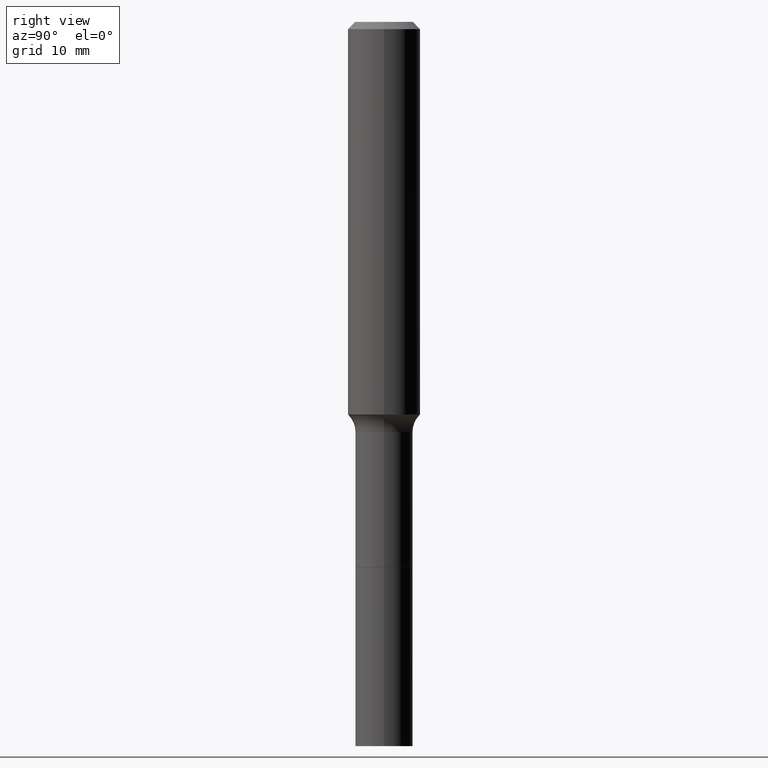
[diagram: clean part render]
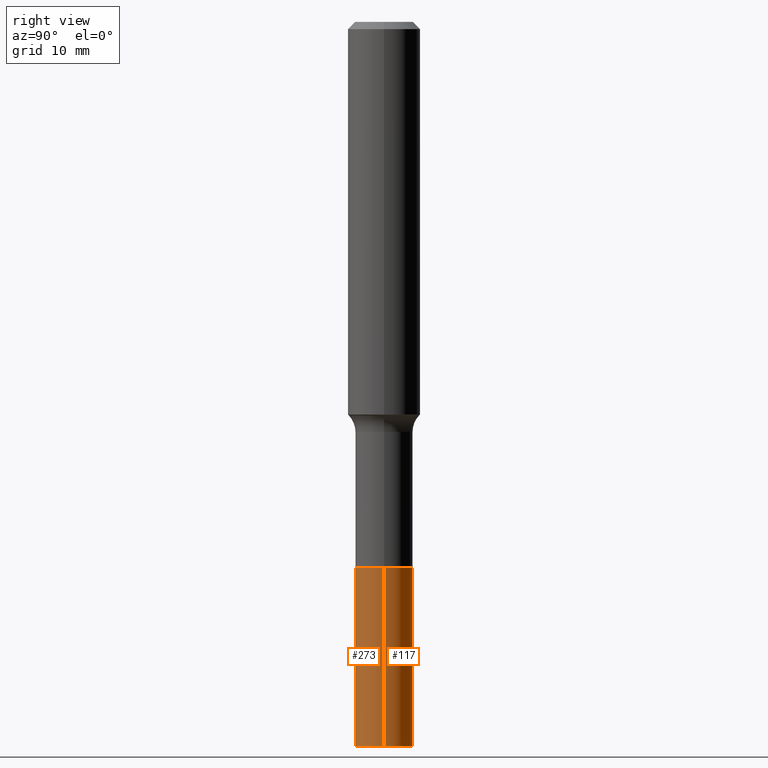
[diagram: same view with one multi-face feature highlighted, each face labeled with its STEP entity id]
A machine part, right view. The highlighted faces form ONE feature: a constant-radius fillet chain: 2 tangent blend faces with common blend radius 2.3813 mm. The faces share edges in the B-rep.
Their STEP definitions:
[1] entity #273 (Cylinder):
#16 = CYLINDRICAL_SURFACE ( 'NONE', #134, 0.09375000000000006939 ) ;
#35 = LINE ( 'NONE', #270, #500 ) ;
#39 = CARTESIAN_POINT ( 'NONE',  ( 0.09375000000000006939, -6.866696349102812717E-15, -1.779199999999999893 ) ) ;
#62 = AXIS2_PLACEMENT_3D ( 'NONE', #237, #313, #407 ) ;
#63 = DIRECTION ( 'NONE',  ( -2.445468806185136597E-29, 3.491481338843145583E-15, 1.000000000000000000 ) ) ;
#69 = EDGE_CURVE ( 'NONE', #388, #424, #335, .T. ) ;
#76 = CARTESIAN_POINT ( 'NONE',  ( 0.09375000000000001388, -6.866696349102811928E-15, -1.779199999999999893 ) ) ;
#91 = CARTESIAN_POINT ( 'NONE',  ( 4.350978099964594525E-29, -6.212043598069725213E-15, -1.779199999999999893 ) ) ;
#101 = CARTESIAN_POINT ( 'NONE',  ( 4.350978099964594525E-29, -6.212043598069725213E-15, -1.779199999999999893 ) ) ;
#114 = ORIENTED_EDGE ( 'NONE', *, *, #69, .T. ) ;
#131 = ORIENTED_EDGE ( 'NONE', *, *, #330, .T. ) ;
#134 = AXIS2_PLACEMENT_3D ( 'NONE', #101, #63, #328 ) ;
#195 = DIRECTION ( 'NONE',  ( -2.445468806185136877E-29, 3.491481338843145188E-15, 1.000000000000000000 ) ) ;
#232 = LINE ( 'NONE', #39, #240 ) ;
#237 = CARTESIAN_POINT ( 'NONE',  ( 5.776686413970529753E-29, -8.247577218615279626E-15, -2.362200000000000077 ) ) ;
#240 = VECTOR ( 'NONE', #308, 39.37007874015748143 ) ;
#251 = ORIENTED_EDGE ( 'NONE', *, *, #295, .F. ) ;
#262 = EDGE_LOOP ( 'NONE', ( #251, #114, #131, #315 ) ) ;
#266 = VERTEX_POINT ( 'NONE', #340 ) ;
#270 = CARTESIAN_POINT ( 'NONE',  ( -0.09375000000000006939, -5.545909783294630499E-15, -1.779199999999999893 ) ) ;
#273 = ADVANCED_FACE ( 'NONE', ( #368 ), #16, .T. ) ;
#288 = DIRECTION ( 'NONE',  ( 1.000000000000000000, -6.982962677686261189E-15, 0.000000000000000000 ) ) ;
#295 = EDGE_CURVE ( 'NONE', #388, #266, #35, .T. ) ;
#308 = DIRECTION ( 'NONE',  ( -2.445468806185136877E-29, 3.491481338843145188E-15, 1.000000000000000000 ) ) ;
#313 = DIRECTION ( 'NONE',  ( -2.445468806185136597E-29, 3.491481338843145583E-15, 1.000000000000000000 ) ) ;
#315 = ORIENTED_EDGE ( 'NONE', *, *, #433, .F. ) ;
#328 = DIRECTION ( 'NONE',  ( 1.000000000000000000, -6.982962677686267499E-15, 0.000000000000000000 ) ) ;
#330 = EDGE_CURVE ( 'NONE', #424, #386, #232, .T. ) ;
#335 = CIRCLE ( 'NONE', #62, 0.09375000000000013878 ) ;
#340 = CARTESIAN_POINT ( 'NONE',  ( -0.09375000000000001388, -6.563676593567408101E-15, -1.779199999999999893 ) ) ;
#359 = CARTESIAN_POINT ( 'NONE',  ( 0.09375000000000013878, -8.902229969648367919E-15, -2.362200000000000077 ) ) ;
#368 = FACE_OUTER_BOUND ( 'NONE', #262, .T. ) ;
#369 = DIRECTION ( 'NONE',  ( -2.445468806185136597E-29, 3.491481338843145583E-15, 1.000000000000000000 ) ) ;
#385 = AXIS2_PLACEMENT_3D ( 'NONE', #91, #369, #288 ) ;
#386 = VERTEX_POINT ( 'NONE', #76 ) ;
#388 = VERTEX_POINT ( 'NONE', #450 ) ;
#407 = DIRECTION ( 'NONE',  ( 1.000000000000000000, -6.982962677686273021E-15, 0.000000000000000000 ) ) ;
#424 = VERTEX_POINT ( 'NONE', #359 ) ;
#433 = EDGE_CURVE ( 'NONE', #266, #386, #453, .T. ) ;
#450 = CARTESIAN_POINT ( 'NONE',  ( -0.09375000000000013878, -6.563676593567407312E-15, -2.362200000000000077 ) ) ;
#453 = CIRCLE ( 'NONE', #385, 0.09375000000000001388 ) ;
#500 = VECTOR ( 'NONE', #195, 39.37007874015748143 ) ;
[2] entity #117 (Cylinder):
#35 = LINE ( 'NONE', #270, #500 ) ;
#39 = CARTESIAN_POINT ( 'NONE',  ( 0.09375000000000006939, -6.866696349102812717E-15, -1.779199999999999893 ) ) ;
#65 = DIRECTION ( 'NONE',  ( 1.000000000000000000, -6.982962677686261189E-15, 0.000000000000000000 ) ) ;
#76 = CARTESIAN_POINT ( 'NONE',  ( 0.09375000000000001388, -6.866696349102811928E-15, -1.779199999999999893 ) ) ;
#81 = ORIENTED_EDGE ( 'NONE', *, *, #295, .T. ) ;
#112 = CIRCLE ( 'NONE', #466, 0.09375000000000001388 ) ;
#117 = ADVANCED_FACE ( 'NONE', ( #121 ), #272, .T. ) ;
#121 = FACE_OUTER_BOUND ( 'NONE', #198, .T. ) ;
#136 = EDGE_CURVE ( 'NONE', #424, #388, #499, .T. ) ;
#158 = ORIENTED_EDGE ( 'NONE', *, *, #330, .F. ) ;
#184 = EDGE_CURVE ( 'NONE', #386, #266, #112, .T. ) ;
#195 = DIRECTION ( 'NONE',  ( -2.445468806185136877E-29, 3.491481338843145188E-15, 1.000000000000000000 ) ) ;
#198 = EDGE_LOOP ( 'NONE', ( #209, #81, #303, #158 ) ) ;
#209 = ORIENTED_EDGE ( 'NONE', *, *, #136, .T. ) ;
#232 = LINE ( 'NONE', #39, #240 ) ;
#240 = VECTOR ( 'NONE', #308, 39.37007874015748143 ) ;
#254 = AXIS2_PLACEMENT_3D ( 'NONE', #257, #427, #418 ) ;
#257 = CARTESIAN_POINT ( 'NONE',  ( 5.776686413970529753E-29, -8.247577218615279626E-15, -2.362200000000000077 ) ) ;
#263 = AXIS2_PLACEMENT_3D ( 'NONE', #354, #502, #508 ) ;
#266 = VERTEX_POINT ( 'NONE', #340 ) ;
#270 = CARTESIAN_POINT ( 'NONE',  ( -0.09375000000000006939, -5.545909783294630499E-15, -1.779199999999999893 ) ) ;
#272 = CYLINDRICAL_SURFACE ( 'NONE', #263, 0.09375000000000006939 ) ;
#295 = EDGE_CURVE ( 'NONE', #388, #266, #35, .T. ) ;
#303 = ORIENTED_EDGE ( 'NONE', *, *, #184, .F. ) ;
#308 = DIRECTION ( 'NONE',  ( -2.445468806185136877E-29, 3.491481338843145188E-15, 1.000000000000000000 ) ) ;
#330 = EDGE_CURVE ( 'NONE', #424, #386, #232, .T. ) ;
#340 = CARTESIAN_POINT ( 'NONE',  ( -0.09375000000000001388, -6.563676593567408101E-15, -1.779199999999999893 ) ) ;
#343 = CARTESIAN_POINT ( 'NONE',  ( 4.350978099964594525E-29, -6.212043598069725213E-15, -1.779199999999999893 ) ) ;
#354 = CARTESIAN_POINT ( 'NONE',  ( 4.350978099964594525E-29, -6.212043598069725213E-15, -1.779199999999999893 ) ) ;
#359 = CARTESIAN_POINT ( 'NONE',  ( 0.09375000000000013878, -8.902229969648367919E-15, -2.362200000000000077 ) ) ;
#386 = VERTEX_POINT ( 'NONE', #76 ) ;
#388 = VERTEX_POINT ( 'NONE', #450 ) ;
#418 = DIRECTION ( 'NONE',  ( 1.000000000000000000, -6.982962677686273021E-15, 0.000000000000000000 ) ) ;
#424 = VERTEX_POINT ( 'NONE', #359 ) ;
#427 = DIRECTION ( 'NONE',  ( -2.445468806185136597E-29, 3.491481338843145583E-15, 1.000000000000000000 ) ) ;
#450 = CARTESIAN_POINT ( 'NONE',  ( -0.09375000000000013878, -6.563676593567407312E-15, -2.362200000000000077 ) ) ;
#466 = AXIS2_PLACEMENT_3D ( 'NONE', #343, #471, #65 ) ;
#471 = DIRECTION ( 'NONE',  ( -2.445468806185136597E-29, 3.491481338843145583E-15, 1.000000000000000000 ) ) ;
#499 = CIRCLE ( 'NONE', #254, 0.09375000000000013878 ) ;
#500 = VECTOR ( 'NONE', #195, 39.37007874015748143 ) ;
#502 = DIRECTION ( 'NONE',  ( -2.445468806185136597E-29, 3.491481338843145583E-15, 1.000000000000000000 ) ) ;
#508 = DIRECTION ( 'NONE',  ( 1.000000000000000000, -6.982962677686267499E-15, 0.000000000000000000 ) ) ;